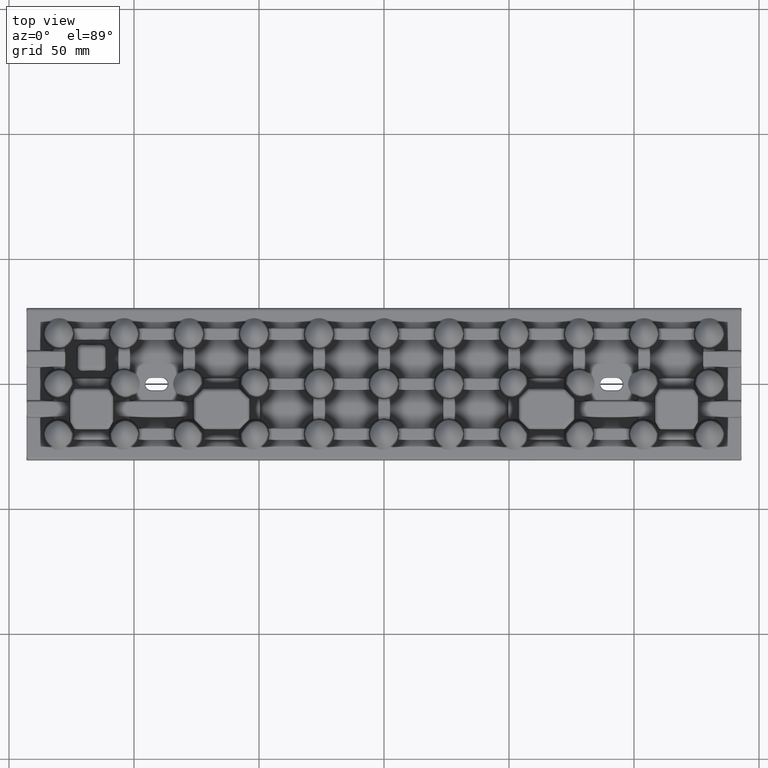
[diagram: clean part render]
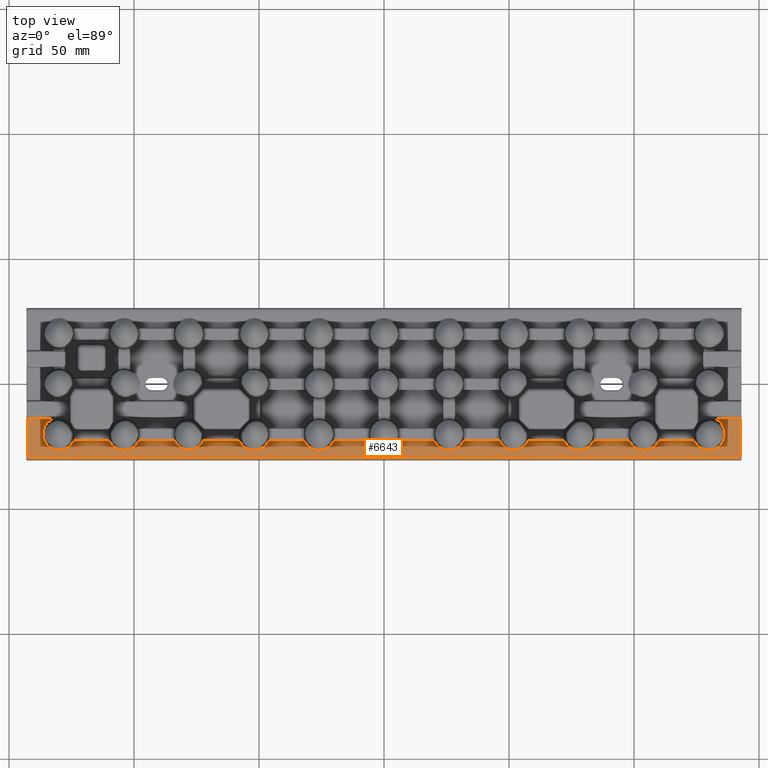
[diagram: same view with one face highlighted and labeled with its STEP entity id]
A machine part, top view. The second image highlights one B-rep face of the part: STEP entity #6643.
In plain terms, the highlighted planar face has unit normal (-0, 0, 1).
Its self-contained STEP definition (entity closure, byte-faithful):
#151 = CARTESIAN_POINT ( 'NONE',  ( 142.4984859507544300, -29.17765049216839300, 2.000000000000000000 ) ) ;
#738 = CARTESIAN_POINT ( 'NONE',  ( 0.0000000000000000000, -13.77131854326631800, 2.000000000000000000 ) ) ;
#808 = CARTESIAN_POINT ( 'NONE',  ( -127.1677831082584600, -25.85937667777277200, 1.999999999999998700 ) ) ;
#1240 = CARTESIAN_POINT ( 'NONE',  ( -132.9284881349958000, -25.81319105266127800, 2.000000000000580900 ) ) ;
#1615 = CARTESIAN_POINT ( 'NONE',  ( 136.0645933486443700, -17.88032124303272100, 1.999999999999994000 ) ) ;
#1689 = CARTESIAN_POINT ( 'NONE',  ( -136.4034223964154900, -20.67570142104287400, 1.999999999999924900 ) ) ;
#1784 = VERTEX_POINT ( 'NONE', #80443 ) ;
#2050 = B_SPLINE_CURVE_WITH_KNOTS ( 'NONE', 3,
 ( #93510, #18031, #28947, #104326, #39819, #115193, #50629, #126154, #61452, #137053, #72276, #7617, #83119, #18498, #93983, #29444, #104818, #40272, #115698, #51113, #126619, #61924, #137532, #72758, #8069, #83607, #18986, #94443, #29912, #105291 ),
 .UNSPECIFIED., .F., .F.,
 ( 4, 2, 2, 2, 2, 2, 2, 2, 2, 2, 2, 2, 2, 2, 4 ),
 ( 0.0000000000000000000, 0.0009156152931669612400, 0.001831230586333922500, 0.002746845879500883900, 0.003662461172667845000, 0.004578076465834806900, 0.005493691759001767900, 0.007324922345335689900, 0.009156152931669613700, 0.01007176822483659200, 0.01098738351800357400, 0.01190299881117055400, 0.01281861410433753600, 0.01373422939750451600, 0.01464984469067149800 ),
 .UNSPECIFIED. ) ;
#2087 = CARTESIAN_POINT ( 'NONE',  ( 135.9368117710015200, -22.43650695266701000, 2.000000000000037700 ) ) ;
#2168 = CARTESIAN_POINT ( 'NONE',  ( -134.4511378802417000, -15.25931890034266800, 1.999999999999991800 ) ) ;
#2431 = CARTESIAN_POINT ( 'NONE',  ( -22.78574191850781000, -25.66615805164716900, 2.000000000000021300 ) ) ;
#2572 = CARTESIAN_POINT ( 'NONE',  ( 130.9432951432893000, -26.41147579895971400, 2.000000000000077700 ) ) ;
#2839 = CARTESIAN_POINT ( 'NONE',  ( -83.68591838113543700, -22.74142219370179800, 2.000000000000000000 ) ) ;
#2891 = CARTESIAN_POINT ( 'NONE',  ( -29.97917873193784600, -25.15741094666958900, 2.000000000000002200 ) ) ;
#3017 = CARTESIAN_POINT ( 'NONE',  ( 31.22517783214215100, -23.81596749769660100, 2.000000000000000900 ) ) ;
#3030 = CARTESIAN_POINT ( 'NONE',  ( 125.2915654326091300, -24.49794283214327700, 2.000000000000016400 ) ) ;
#3046 = VECTOR ( 'NONE', #37584, 1000.000000000000000 ) ;
#3304 = CARTESIAN_POINT ( 'NONE',  ( -79.47440536052313600, -26.19264104530129700, 2.000000000000704800 ) ) ;
#3496 = CARTESIAN_POINT ( 'NONE',  ( 24.77591608115842400, -26.39024483070197000, 2.000000000000047500 ) ) ;
#3790 = CARTESIAN_POINT ( 'NONE',  ( -73.44410495880994500, -24.48426897416614900, 2.000000000000000400 ) ) ;
#3969 = CARTESIAN_POINT ( 'NONE',  ( 20.19330319997780200, -22.74142219370180100, 2.000000000000000000 ) ) ;
#5532 = EDGE_CURVE ( 'NONE', #45907, #138908, #137024, .T. ) ;
#5817 = CARTESIAN_POINT ( 'NONE',  ( 109.0463934162893100, -24.06677578848307400, 1.999999999999997800 ) ) ;
#5936 = CARTESIAN_POINT ( 'NONE',  ( -46.95360658371073700, -24.06677578848306400, 1.999999999999998200 ) ) ;
#6086 = CARTESIAN_POINT ( 'NONE',  ( 5.806695894209216400, -22.74142219370180100, 2.000000000000000000 ) ) ;
#6263 = CARTESIAN_POINT ( 'NONE',  ( 101.8948791401308000, -26.14868328437718500, 2.000000000000044400 ) ) ;
#6317 = CARTESIAN_POINT ( 'NONE',  ( 5.806695894209216400, -22.74142219370180100, 2.000000000000000000 ) ) ;
#6389 = CARTESIAN_POINT ( 'NONE',  ( -54.10512085986916000, -26.14868328437720300, 2.000000000000046200 ) ) ;
#6579 = B_SPLINE_CURVE_WITH_KNOTS ( 'NONE', 3,
 ( #61345, #94341, #40642, #116062, #51491, #126989, #62280, #137917, #73136, #8439, #83967, #19393, #94812, #30269, #105670, #41104, #116513, #51948, #127485, #62749, #138365, #73627, #8917, #84432, #19844, #95293, #30754, #106106, #41574, #116996 ),
 .UNSPECIFIED., .F., .F.,
 ( 4, 2, 2, 2, 2, 2, 2, 2, 2, 2, 2, 2, 2, 2, 4 ),
 ( 0.0000000000000000000, 0.0009156152931670032000, 0.001831230586334006400, 0.002746845879501009700, 0.003662461172668012800, 0.004578076465835015900, 0.005493691759002019400, 0.007324922345336025600, 0.009156152931670031800, 0.01007176822483703400, 0.01098738351800403900, 0.01190299881117104100, 0.01281861410433804400, 0.01373422939750504900, 0.01464984469067205100 ),
 .UNSPECIFIED. ) ;
#6643 = ADVANCED_FACE ( 'NONE', ( #37579 ), #47187, .T. ) ;
#6795 = CARTESIAN_POINT ( 'NONE',  ( 0.6072638204597877700, -26.47178359259649500, 2.000000000000000400 ) ) ;
#7279 = CARTESIAN_POINT ( 'NONE',  ( -5.541684193575162200, -23.29783372013630700, 1.999999999999997300 ) ) ;
#7511 = CARTESIAN_POINT ( 'NONE',  ( 48.85203890220482500, -25.57334693109025300, 2.000000000000000000 ) ) ;
#7617 = CARTESIAN_POINT ( 'NONE',  ( -101.6125027777899800, -26.04970351059458600, 2.000000000000000400 ) ) ;
#7990 = CARTESIAN_POINT ( 'NONE',  ( 54.89385118735477000, -25.73014058700009300, 2.000000000000052800 ) ) ;
#8069 = CARTESIAN_POINT ( 'NONE',  ( -108.6560866437757400, -24.53350805554909200, 2.000000000000000000 ) ) ;
#8439 = CARTESIAN_POINT ( 'NONE',  ( 81.21425808149213300, -25.66615805164720900, 2.000000000000023100 ) ) ;
#8603 = VERTEX_POINT ( 'NONE', #75447 ) ;
#8917 = CARTESIAN_POINT ( 'NONE',  ( 74.02082126806209300, -25.15741094666951500, 1.999999999999998700 ) ) ;
#9005 = CARTESIAN_POINT ( 'NONE',  ( 0.0000000000000000000, -22.74142219370180100, 2.000000000000000000 ) ) ;
#9066 = VECTOR ( 'NONE', #96254, 1000.000000000000000 ) ;
#10142 = LINE ( 'NONE', #137758, #74346 ) ;
#10251 = ORIENTED_EDGE ( 'NONE', *, *, #43761, .T. ) ;
#10400 = DIRECTION ( 'NONE',  ( -1.000000000000000000, 0.0000000000000000000, -0.0000000000000000000 ) ) ;
#11707 = CARTESIAN_POINT ( 'NONE',  ( -127.8893021688685700, -26.14484478611346700, 1.999999999999999600 ) ) ;
#12103 = CARTESIAN_POINT ( 'NONE',  ( 132.7414221937016500, -14.10473753803592900, 2.000000000000000000 ) ) ;
#12179 = CARTESIAN_POINT ( 'NONE',  ( -133.5956950706368200, -25.43116412947593800, 2.000000000000000400 ) ) ;
#12572 = CARTESIAN_POINT ( 'NONE',  ( 136.3714528742059400, -19.14471316600591800, 1.999999999999998200 ) ) ;
#12652 = CARTESIAN_POINT ( 'NONE',  ( -136.4687953592168700, -20.15979065126468900, 1.999999999999988000 ) ) ;
#13035 = CARTESIAN_POINT ( 'NONE',  ( 135.6189141730190800, -23.14793478291226900, 2.000000000000000900 ) ) ;
#13103 = CARTESIAN_POINT ( 'NONE',  ( -133.8644639586054800, -14.75777282845834600, 1.999999999999997100 ) ) ;
#13353 = CARTESIAN_POINT ( 'NONE',  ( -23.61250277778998500, -26.04970351059461500, 2.000000000000001300 ) ) ;
#13484 = CARTESIAN_POINT ( 'NONE',  ( 129.9075844915361700, -26.48989633160882900, 2.000000000000012900 ) ) ;
#13759 = CARTESIAN_POINT ( 'NONE',  ( -83.42780945839075500, -23.28035222551023200, 2.000000000000020000 ) ) ;
#13829 = CARTESIAN_POINT ( 'NONE',  ( -30.65608664377573000, -24.53350805554907400, 1.999999999999998200 ) ) ;
#13958 = CARTESIAN_POINT ( 'NONE',  ( 30.65280113382921500, -24.53726980429203100, 2.000000000000003100 ) ) ;
#13972 = CARTESIAN_POINT ( 'NONE',  ( 124.6754670495089400, -23.66103315853757400, 2.000000000000003600 ) ) ;
#14068 = EDGE_CURVE ( 'NONE', #75437, #89646, #37893, .T. ) ;
#14276 = CARTESIAN_POINT ( 'NONE',  ( -78.59053231696451300, -26.32451529257474500, 2.000000000000027100 ) ) ;
#14446 = CARTESIAN_POINT ( 'NONE',  ( 23.60270962495429000, -26.04602759859922000, 2.000000000000492100 ) ) ;
#14724 = CARTESIAN_POINT ( 'NONE',  ( -72.88473329963906600, -23.78758118116923400, 2.000000000000177200 ) ) ;
#15299 = VECTOR ( 'NONE', #82431, 1000.000000000000000 ) ;
#16713 = CARTESIAN_POINT ( 'NONE',  ( 108.4394758896441300, -24.75519463531261300, 1.999999999999997300 ) ) ;
#16823 = CARTESIAN_POINT ( 'NONE',  ( -47.56052411035586400, -24.75519463531259100, 1.999999999999998700 ) ) ;
#17177 = CARTESIAN_POINT ( 'NONE',  ( 101.0444661012235800, -25.80218862291354000, 2.000000000000492900 ) ) ;
#17229 = CARTESIAN_POINT ( 'NONE',  ( 5.225177832142147600, -23.81596749769657600, 2.000000000000000000 ) ) ;
#17297 = CARTESIAN_POINT ( 'NONE',  ( -54.95553389877639500, -25.80218862291353700, 2.000000000000492100 ) ) ;
#17616 = CARTESIAN_POINT ( 'NONE',  ( -142.4984859507544300, -13.77131854326631800, 2.000000000000000000 ) ) ;
#17719 = CARTESIAN_POINT ( 'NONE',  ( -1.224083918841574600, -26.39024483070197400, 2.000000000000044400 ) ) ;
#18031 = CARTESIAN_POINT ( 'NONE',  ( -98.31652695120499200, -23.02322631670617500, 1.999999999999999600 ) ) ;
#18085 = EDGE_CURVE ( 'NONE', #115198, #123101, #98378, .T. ) ;
#18185 = CARTESIAN_POINT ( 'NONE',  ( -5.806696800022201000, -22.74142219370179800, 2.000000000000000000 ) ) ;
#18405 = CARTESIAN_POINT ( 'NONE',  ( 49.66674057096045700, -25.94368252401840300, 2.000000000000001800 ) ) ;
#18498 = CARTESIAN_POINT ( 'NONE',  ( -102.7897079197724700, -26.39300811469664200, 1.999999999999997800 ) ) ;
#18889 = CARTESIAN_POINT ( 'NONE',  ( 55.89689297013789100, -25.08300639374745300, 2.000000000000000000 ) ) ;
#18986 = CARTESIAN_POINT ( 'NONE',  ( -109.2224709639855000, -23.82003017580197800, 1.999999999999989600 ) ) ;
#19273 = VERTEX_POINT ( 'NONE', #34967 ) ;
#19393 = CARTESIAN_POINT ( 'NONE',  ( 80.38749722220997300, -26.04970351059464000, 1.999999999999999600 ) ) ;
#19844 = CARTESIAN_POINT ( 'NONE',  ( 73.34391335622426300, -24.53350805554905300, 2.000000000000005300 ) ) ;
#20604 = VERTEX_POINT ( 'NONE', #93060 ) ;
#21101 = CARTESIAN_POINT ( 'NONE',  ( 0.0000000000000000000, -13.77131854326631800, 2.000000000000000000 ) ) ;
#22136 = LINE ( 'NONE', #28743, #15299 ) ;
#22641 = CARTESIAN_POINT ( 'NONE',  ( -128.6420385431768000, -26.34150779007648800, 2.000000000000001300 ) ) ;
#23036 = CARTESIAN_POINT ( 'NONE',  ( 133.6569050662870400, -14.58866901737052400, 2.000000000000001800 ) ) ;
#23112 = CARTESIAN_POINT ( 'NONE',  ( -134.2114228412292200, -24.96202852704506000, 2.000000000000018700 ) ) ;
#23497 = CARTESIAN_POINT ( 'NONE',  ( 136.4624981033706800, -19.78855814361871500, 1.999999999999952700 ) ) ;
#23570 = CARTESIAN_POINT ( 'NONE',  ( -136.4607761439300800, -19.77090691509322800, 2.000000000000050200 ) ) ;
#23603 = AXIS2_PLACEMENT_3D ( 'NONE', #100887, #58015, #133603 ) ;
#23826 = CARTESIAN_POINT ( 'NONE',  ( -20.31652695120500600, -23.02322631670618900, 2.000000000000000000 ) ) ;
#23876 = CARTESIAN_POINT ( 'NONE',  ( 0.0000000000000000000, -22.74142219370179800, 2.000000000000000000 ) ) ;
#23948 = CARTESIAN_POINT ( 'NONE',  ( 134.9360761450868400, -24.23255381369675400, 1.999999999999994400 ) ) ;
#24028 = CARTESIAN_POINT ( 'NONE',  ( -133.2090960313395300, -14.33342506234662900, 2.000000000000002700 ) ) ;
#24128 = EDGE_CURVE ( 'NONE', #20604, #123647, #56181, .T. ) ;
#24276 = CARTESIAN_POINT ( 'NONE',  ( -24.78970791977252500, -26.39300811469662700, 1.999999999999999600 ) ) ;
#24420 = CARTESIAN_POINT ( 'NONE',  ( 128.6287481142321700, -26.33886046399919300, 1.999999999999991800 ) ) ;
#24692 = CARTESIAN_POINT ( 'NONE',  ( -82.94024451899652200, -24.03007750043275700, 2.000000000000000900 ) ) ;
#24748 = CARTESIAN_POINT ( 'NONE',  ( -31.22247096398546500, -23.82003017580198200, 2.000000000000002700 ) ) ;
#24818 = CARTESIAN_POINT ( 'NONE',  ( 0.0000000000000000000, -22.74142219370179800, 2.000000000000000000 ) ) ;
#24864 = CARTESIAN_POINT ( 'NONE',  ( 29.97997364841552300, -25.15661630234944100, 1.999999999999999100 ) ) ;
#24878 = CARTESIAN_POINT ( 'NONE',  ( 124.2977623594017000, -22.98031564957841200, 2.000000000000000900 ) ) ;
#25151 = CARTESIAN_POINT ( 'NONE',  ( -77.69550166096097100, -26.34256206832378700, 2.000000000000001300 ) ) ;
#25266 = DIRECTION ( 'NONE',  ( -0.0000000000000000000, 1.000000000000000000, -0.0000000000000000000 ) ) ;
#25323 = CARTESIAN_POINT ( 'NONE',  ( 22.77675482516403700, -25.66096127824901900, 2.000000000000000400 ) ) ;
#25608 = CARTESIAN_POINT ( 'NONE',  ( -72.43377712669759200, -23.01370780811186700, 2.000000000000002200 ) ) ;
#25620 = CARTESIAN_POINT ( 'NONE',  ( 57.68591749716829800, -22.74142219370180100, 2.000000000000000000 ) ) ;
#27266 = VERTEX_POINT ( 'NONE', #95319 ) ;
#27525 = VECTOR ( 'NONE', #116684, 1000.000000000000000 ) ;
#27642 = CARTESIAN_POINT ( 'NONE',  ( 107.7316097660336100, -25.34129135774813000, 2.000000000000023500 ) ) ;
#27766 = CARTESIAN_POINT ( 'NONE',  ( -48.26839023396642100, -25.34129135774810500, 2.000000000000021800 ) ) ;
#28104 = CARTESIAN_POINT ( 'NONE',  ( 100.2648886500111600, -25.33864648467306300, 2.000000000000000000 ) ) ;
#28154 = CARTESIAN_POINT ( 'NONE',  ( 4.652801133829243000, -24.53726980429200200, 2.000000000000001800 ) ) ;
#28221 = CARTESIAN_POINT ( 'NONE',  ( -55.73511134998881300, -25.33864648467306000, 1.999999999999999600 ) ) ;
#28620 = CARTESIAN_POINT ( 'NONE',  ( -2.397290375045698000, -26.04602759859922400, 2.000000000000492100 ) ) ;
#28743 = CARTESIAN_POINT ( 'NONE',  ( 0.0000000000000000000, -29.17765049216839300, 2.000000000000000000 ) ) ;
#28850 = CARTESIAN_POINT ( 'NONE',  ( 46.43367432634570900, -23.01347693019735300, 2.000000000000001300 ) ) ;
#28947 = CARTESIAN_POINT ( 'NONE',  ( -98.45676499946749500, -23.29491823710616000, 2.000000000000000000 ) ) ;
#29328 = LINE ( 'NONE', #31900, #57962 ) ;
#29346 = CARTESIAN_POINT ( 'NONE',  ( 50.52559463947675100, -26.19264104530126100, 2.000000000000703000 ) ) ;
#29444 = CARTESIAN_POINT ( 'NONE',  ( -104.6217774259914300, -26.47048911014606900, 2.000000000000000000 ) ) ;
#29831 = CARTESIAN_POINT ( 'NONE',  ( 56.55589504119009100, -24.48426897416617700, 2.000000000000000000 ) ) ;
#29912 = CARTESIAN_POINT ( 'NONE',  ( -109.6834144177099700, -23.02336352389917100, 2.000000000000000000 ) ) ;
#29960 = EDGE_CURVE ( 'NONE', #106821, #115198, #75830, .T. ) ;
#30269 = CARTESIAN_POINT ( 'NONE',  ( 79.21029208022733300, -26.39300811469664900, 2.000000000000001300 ) ) ;
#30695 = ORIENTED_EDGE ( 'NONE', *, *, #125096, .T. ) ;
#30754 = CARTESIAN_POINT ( 'NONE',  ( 72.77752903601454200, -23.82003017580197800, 2.000000000000002200 ) ) ;
#31175 = LINE ( 'NONE', #37825, #88465 ) ;
#31378 = EDGE_CURVE ( 'NONE', #58098, #1784, #116177, .T. ) ;
#31459 = CARTESIAN_POINT ( 'NONE',  ( 0.0000000000000000000, -22.74142219370179800, 2.000000000000000000 ) ) ;
#31900 = CARTESIAN_POINT ( 'NONE',  ( 0.0000000000000000000, -22.74142219370180100, 2.000000000000000000 ) ) ;
#32205 = CARTESIAN_POINT ( 'NONE',  ( 0.0000000000000000000, -22.74142219370180100, 2.000000000000000000 ) ) ;
#32455 = EDGE_CURVE ( 'NONE', #76427, #109794, #58636, .T. ) ;
#33199 = EDGE_CURVE ( 'NONE', #75437, #123647, #64641, .T. ) ;
#33402 = VECTOR ( 'NONE', #99248, 1000.000000000000000 ) ;
#33509 = CARTESIAN_POINT ( 'NONE',  ( -129.4074505486324000, -26.45057061535970200, 2.000000000000000900 ) ) ;
#33891 = CARTESIAN_POINT ( 'NONE',  ( 134.4516583919933100, -15.25979955793436300, 2.000000000000421400 ) ) ;
#33979 = CARTESIAN_POINT ( 'NONE',  ( -134.9419096960797600, -24.22524177694613500, 2.000000000000000900 ) ) ;
#34194 = ORIENTED_EDGE ( 'NONE', *, *, #127836, .T. ) ;
#34356 = CARTESIAN_POINT ( 'NONE',  ( 136.4672048514999600, -20.17843755265983700, 1.999999999999964500 ) ) ;
#34431 = CARTESIAN_POINT ( 'NONE',  ( -136.3684743477429300, -19.12850336203381800, 2.000000000000009300 ) ) ;
#34695 = CARTESIAN_POINT ( 'NONE',  ( -20.45676499946746700, -23.29491823710616000, 1.999999999999998200 ) ) ;
#34837 = CARTESIAN_POINT ( 'NONE',  ( 134.2040338513504300, -24.96841754248552500, 2.000000000000001300 ) ) ;
#34912 = CARTESIAN_POINT ( 'NONE',  ( -132.7414221937016500, -14.10473258521159100, 2.000000000000000000 ) ) ;
#34967 = CARTESIAN_POINT ( 'NONE',  ( -132.7414221937016500, -13.77131854326631800, 2.000000000000000000 ) ) ;
#35159 = CARTESIAN_POINT ( 'NONE',  ( -26.62177742599142900, -26.47048911014606900, 1.999999999999999600 ) ) ;
#35285 = CARTESIAN_POINT ( 'NONE',  ( 127.8759890555552200, -26.14042897951428700, 2.000000000000221200 ) ) ;
#35560 = CARTESIAN_POINT ( 'NONE',  ( -82.34792046477386400, -24.69451371952746800, 1.999999999999999600 ) ) ;
#35612 = CARTESIAN_POINT ( 'NONE',  ( -31.68341441770995800, -23.02336352389917100, 2.000000000000000000 ) ) ;
#35744 = CARTESIAN_POINT ( 'NONE',  ( 29.21425808149216900, -25.66615805164721900, 2.000000000000022600 ) ) ;
#36047 = CARTESIAN_POINT ( 'NONE',  ( -76.81111546368501300, -26.24789493660954800, 2.000000000000001300 ) ) ;
#36107 = ORIENTED_EDGE ( 'NONE', *, *, #87953, .T. ) ;
#36225 = CARTESIAN_POINT ( 'NONE',  ( 22.02082126806217100, -25.15741094666958200, 2.000000000000001300 ) ) ;
#36401 = ORIENTED_EDGE ( 'NONE', *, *, #96386, .T. ) ;
#37333 = VERTEX_POINT ( 'NONE', #151 ) ;
#37579 = FACE_OUTER_BOUND ( 'NONE', #130443, .T. ) ;
#37584 = DIRECTION ( 'NONE',  ( -0.0000000000000000000, 1.000000000000000000, -0.0000000000000000000 ) ) ;
#37825 = CARTESIAN_POINT ( 'NONE',  ( 132.7414221937016500, 0.0000000000000000000, 2.000000000000000000 ) ) ;
#37893 = LINE ( 'NONE', #31459, #95241 ) ;
#38475 = CARTESIAN_POINT ( 'NONE',  ( 106.9451655532683700, -25.80728826625282900, 2.000000000000000000 ) ) ;
#38591 = CARTESIAN_POINT ( 'NONE',  ( -49.05483444673166100, -25.80728826625284000, 2.000000000000000900 ) ) ;
#38946 = CARTESIAN_POINT ( 'NONE',  ( 99.55769046698991100, -24.75263028433559500, 2.000000000000000000 ) ) ;
#38999 = CARTESIAN_POINT ( 'NONE',  ( 3.979973648415558800, -25.15661630234941600, 1.999999999999999600 ) ) ;
#39074 = CARTESIAN_POINT ( 'NONE',  ( -56.44230953301003200, -24.75263028433563800, 2.000000000000000000 ) ) ;
#39489 = CARTESIAN_POINT ( 'NONE',  ( -3.223245174835940300, -25.66096127824901200, 2.000000000000001300 ) ) ;
#39679 = VECTOR ( 'NONE', #25266, 1000.000000000000000 ) ;
#39718 = CARTESIAN_POINT ( 'NONE',  ( 46.57219054160929500, -23.28035222551022400, 2.000000000000019100 ) ) ;
#39819 = CARTESIAN_POINT ( 'NONE',  ( -98.95360658371070900, -24.06677578848300700, 2.000000000000002700 ) ) ;
#40182 = CARTESIAN_POINT ( 'NONE',  ( 51.40946768303538800, -26.32451529257474100, 2.000000000000027500 ) ) ;
#40272 = CARTESIAN_POINT ( 'NONE',  ( -106.1051208598691200, -26.14868328437722100, 2.000000000000047500 ) ) ;
#40499 = B_SPLINE_CURVE_WITH_KNOTS ( 'NONE', 3,
 ( #55855, #23826, #34695, #110059, #45501, #120962, #56325, #131901, #67133, #2431, #78002, #13353, #88896, #24276, #99647, #35159, #110540, #45988, #121426, #56810, #132392, #67601, #2891, #78470, #13829, #89351, #24748, #100117, #35612, #110990 ),
 .UNSPECIFIED., .F., .F.,
 ( 4, 2, 2, 2, 2, 2, 2, 2, 2, 2, 2, 2, 2, 2, 4 ),
 ( 3.469446951953614200E-018, 0.0009156152931669754400, 0.001831230586333947400, 0.002746845879500919500, 0.003662461172667891400, 0.004578076465834863200, 0.005493691759001835500, 0.007324922345335786200, 0.009156152931669736900, 0.01007176822483671700, 0.01098738351800369500, 0.01190299881117067700, 0.01281861410433765700, 0.01373422939750463700, 0.01464984469067161800 ),
 .UNSPECIFIED. ) ;
#40642 = CARTESIAN_POINT ( 'NONE',  ( 83.54323500053254700, -23.29491823710620600, 1.999999999999998200 ) ) ;
#40648 = CARTESIAN_POINT ( 'NONE',  ( 57.11526670036095500, -23.78758118116922700, 2.000000000000176300 ) ) ;
#40727 = CARTESIAN_POINT ( 'NONE',  ( 142.4984859507544300, -13.77131854326631800, 2.000000000000000000 ) ) ;
#40961 = VERTEX_POINT ( 'NONE', #109076 ) ;
#41104 = CARTESIAN_POINT ( 'NONE',  ( 77.37822257400844700, -26.47048911014606900, 1.999999999999999100 ) ) ;
#41106 = ORIENTED_EDGE ( 'NONE', *, *, #51446, .T. ) ;
#41574 = CARTESIAN_POINT ( 'NONE',  ( 72.31658558229007400, -23.02336352389914600, 2.000000000000000400 ) ) ;
#43761 = EDGE_CURVE ( 'NONE', #130184, #40961, #29328, .T. ) ;
#43881 = CARTESIAN_POINT ( 'NONE',  ( -125.2903691348312700, -24.49689315777552400, 1.999999999999997300 ) ) ;
#44342 = CARTESIAN_POINT ( 'NONE',  ( -130.1863579666847100, -26.47344023647621800, 2.000000000000125200 ) ) ;
#44733 = CARTESIAN_POINT ( 'NONE',  ( 134.9688219662598400, -15.83628162600642100, 2.000000000000046200 ) ) ;
#44811 = CARTESIAN_POINT ( 'NONE',  ( -135.7572785292154800, -22.90030220641899200, 2.000000000000000400 ) ) ;
#45184 = CARTESIAN_POINT ( 'NONE',  ( 136.4004426738390200, -20.69303686582421900, 1.999999999999945400 ) ) ;
#45247 = CARTESIAN_POINT ( 'NONE',  ( -136.0598904677018500, -17.86690788165032400, 2.000000000000004400 ) ) ;
#45501 = CARTESIAN_POINT ( 'NONE',  ( -20.95360658371074400, -24.06677578848303500, 2.000000000000002200 ) ) ;
#45631 = CARTESIAN_POINT ( 'NONE',  ( 133.5888154210448400, -25.43573940505680400, 1.999999999999997300 ) ) ;
#45907 = VERTEX_POINT ( 'NONE', #88023 ) ;
#45988 = CARTESIAN_POINT ( 'NONE',  ( -28.10512085986910000, -26.14868328437721300, 2.000000000000044400 ) ) ;
#46113 = CARTESIAN_POINT ( 'NONE',  ( 31.80669589420920900, -22.74142219370180100, 2.000000000000000000 ) ) ;
#46127 = CARTESIAN_POINT ( 'NONE',  ( 127.1614084082585900, -25.85631073705230800, 1.999999999999998200 ) ) ;
#46420 = CARTESIAN_POINT ( 'NONE',  ( -81.65221506969388100, -25.26203024768307900, 2.000000000000001300 ) ) ;
#46597 = CARTESIAN_POINT ( 'NONE',  ( 28.38749722220999100, -26.04970351059462500, 1.999999999999998700 ) ) ;
#46877 = CARTESIAN_POINT ( 'NONE',  ( -75.64968121670777600, -25.95945051204474700, 2.000000000000009300 ) ) ;
#47040 = CARTESIAN_POINT ( 'NONE',  ( 21.34391335622428400, -24.53350805554907400, 2.000000000000000400 ) ) ;
#47187 = PLANE ( 'NONE',  #23603 ) ;
#47329 = CARTESIAN_POINT ( 'NONE',  ( 20.19330319997780200, -22.74142219370180100, 2.000000000000000000 ) ) ;
#48009 = VECTOR ( 'NONE', #134910, 1000.000000000000000 ) ;
#48808 = ORIENTED_EDGE ( 'NONE', *, *, #24128, .T. ) ;
#48853 = CARTESIAN_POINT ( 'NONE',  ( 109.6834730487950200, -23.02322631670622900, 2.000000000000000000 ) ) ;
#48964 = CARTESIAN_POINT ( 'NONE',  ( -46.31652695120499900, -23.02322631670618900, 2.000000000000000900 ) ) ;
#49319 = CARTESIAN_POINT ( 'NONE',  ( 106.0969733604313800, -26.15140833198172000, 2.000000000000000000 ) ) ;
#49444 = CARTESIAN_POINT ( 'NONE',  ( -49.90302663956856600, -26.15140833198170600, 1.999999999999999600 ) ) ;
#49799 = CARTESIAN_POINT ( 'NONE',  ( 98.95429715980800700, -24.06744520968494800, 2.000000000000013800 ) ) ;
#49848 = CARTESIAN_POINT ( 'NONE',  ( 3.214258081492198800, -25.66615805164717300, 2.000000000000021300 ) ) ;
#49928 = CARTESIAN_POINT ( 'NONE',  ( -57.04570284019202100, -24.06744520968491900, 1.999999999999994400 ) ) ;
#50310 = CARTESIAN_POINT ( 'NONE',  ( -3.979178731937827800, -25.15741094666957500, 2.000000000000000400 ) ) ;
#50527 = CARTESIAN_POINT ( 'NONE',  ( 47.05975548100347100, -24.03007750043271400, 1.999999999999998700 ) ) ;
#50629 = CARTESIAN_POINT ( 'NONE',  ( -99.56052411035580000, -24.75519463531259100, 2.000000000000000400 ) ) ;
#51013 = CARTESIAN_POINT ( 'NONE',  ( 52.30449833903897900, -26.34256206832378000, 1.999999999999999600 ) ) ;
#51113 = CARTESIAN_POINT ( 'NONE',  ( -106.9555338987763700, -25.80218862291355500, 2.000000000000491200 ) ) ;
#51446 = EDGE_CURVE ( 'NONE', #90736, #76427, #40499, .T. ) ;
#51491 = CARTESIAN_POINT ( 'NONE',  ( 83.04639341628922000, -24.06677578848309900, 2.000000000000009300 ) ) ;
#51496 = CARTESIAN_POINT ( 'NONE',  ( 57.56622287330245800, -23.01370780811185000, 2.000000000000001300 ) ) ;
#51948 = CARTESIAN_POINT ( 'NONE',  ( 75.89487914013076900, -26.14868328437717100, 2.000000000000046600 ) ) ;
#52117 = CARTESIAN_POINT ( 'NONE',  ( 0.0000000000000000000, -22.74142219370179800, 2.000000000000000000 ) ) ;
#53014 = ORIENTED_EDGE ( 'NONE', *, *, #121007, .T. ) ;
#53388 = CARTESIAN_POINT ( 'NONE',  ( 0.0000000000000000000, -22.74142219370179800, 2.000000000000000000 ) ) ;
#54661 = VERTEX_POINT ( 'NONE', #57407 ) ;
#54709 = CARTESIAN_POINT ( 'NONE',  ( -126.2726927930745400, -25.34167954715730500, 2.000000000000016000 ) ) ;
#55117 = CARTESIAN_POINT ( 'NONE',  ( -132.7414221937016500, -14.10473258521159100, 2.000000000000000000 ) ) ;
#55158 = CARTESIAN_POINT ( 'NONE',  ( -131.4663745589005000, -26.33477186066688700, 1.999999999999996200 ) ) ;
#55533 = CARTESIAN_POINT ( 'NONE',  ( 135.4108740228137400, -16.47872287474798700, 1.999999999999979600 ) ) ;
#55612 = CARTESIAN_POINT ( 'NONE',  ( -136.1823910671495000, -21.68750928238486600, 2.000000000000025800 ) ) ;
#55855 = CARTESIAN_POINT ( 'NONE',  ( -20.19330410579080100, -22.74142219370179800, 2.000000000000000000 ) ) ;
#55886 = DIRECTION ( 'NONE',  ( 0.0000000000000000000, -1.000000000000000000, 0.0000000000000000000 ) ) ;
#55929 = VERTEX_POINT ( 'NONE', #25620 ) ;
#55996 = CARTESIAN_POINT ( 'NONE',  ( 136.2434715544095800, -21.45293100467358700, 2.000000000000036000 ) ) ;
#56077 = CARTESIAN_POINT ( 'NONE',  ( -135.4238499266821000, -16.46861939280287100, 1.999999999999992200 ) ) ;
#56181 = LINE ( 'NONE', #52117, #27525 ) ;
#56325 = CARTESIAN_POINT ( 'NONE',  ( -21.56052411035583600, -24.75519463531257400, 2.000000000000000400 ) ) ;
#56471 = CARTESIAN_POINT ( 'NONE',  ( 132.4447610383858500, -26.04204316132873800, 2.000000000000000400 ) ) ;
#56810 = CARTESIAN_POINT ( 'NONE',  ( -28.95553389877638000, -25.80218862291354400, 2.000000000000490700 ) ) ;
#56942 = CARTESIAN_POINT ( 'NONE',  ( 126.4852389556759000, -25.48385942365119300, 2.000000000000201600 ) ) ;
#57207 = CARTESIAN_POINT ( 'NONE',  ( -80.88403087684410800, -25.70944690475063500, 2.000000000000003600 ) ) ;
#57376 = CARTESIAN_POINT ( 'NONE',  ( 27.21029208022744700, -26.39300811469662700, 1.999999999999999600 ) ) ;
#57399 = ORIENTED_EDGE ( 'NONE', *, *, #31378, .T. ) ;
#57407 = CARTESIAN_POINT ( 'NONE',  ( 83.80669589420918400, -22.74142219370180100, 2.000000000000000000 ) ) ;
#57581 = EDGE_CURVE ( 'NONE', #109794, #20604, #72365, .T. ) ;
#57665 = CARTESIAN_POINT ( 'NONE',  ( -74.34767569003899700, -25.26199956068239100, 2.000000000000051100 ) ) ;
#57852 = CARTESIAN_POINT ( 'NONE',  ( 20.77752903601456700, -23.82003017580198900, 2.000000000000000000 ) ) ;
#57962 = VECTOR ( 'NONE', #96424, 1000.000000000000000 ) ;
#58015 = DIRECTION ( 'NONE',  ( -0.0000000000000000000, 0.0000000000000000000, 1.000000000000000000 ) ) ;
#58059 = EDGE_CURVE ( 'NONE', #37333, #133635, #75104, .T. ) ;
#58098 = VERTEX_POINT ( 'NONE', #17616 ) ;
#58372 = CARTESIAN_POINT ( 'NONE',  ( 98.19330319997779100, -22.74142219370180100, 2.000000000000000000 ) ) ;
#58636 = LINE ( 'NONE', #23876, #33402 ) ;
#59783 = VECTOR ( 'NONE', #107374, 1000.000000000000000 ) ;
#60133 = CARTESIAN_POINT ( 'NONE',  ( 104.6072638204597100, -26.47178359259649100, 2.000000000000001300 ) ) ;
#60243 = CARTESIAN_POINT ( 'NONE',  ( -51.39273617954027900, -26.47178359259647700, 2.000000000000000000 ) ) ;
#60539 = LINE ( 'NONE', #123408, #3046 ) ;
#60596 = CARTESIAN_POINT ( 'NONE',  ( 98.45831580642477800, -23.29783372013627500, 1.999999999999992700 ) ) ;
#60642 = CARTESIAN_POINT ( 'NONE',  ( 2.387497222210033700, -26.04970351059460000, 2.000000000000000000 ) ) ;
#60713 = CARTESIAN_POINT ( 'NONE',  ( -57.54168419357520000, -23.29783372013634200, 2.000000000000002700 ) ) ;
#60785 = EDGE_CURVE ( 'NONE', #27266, #45907, #69629, .T. ) ;
#61109 = CARTESIAN_POINT ( 'NONE',  ( -4.656086643775729800, -24.53350805554908500, 1.999999999999997800 ) ) ;
#61345 = CARTESIAN_POINT ( 'NONE',  ( 83.80669589420918400, -22.74142219370180100, 2.000000000000000000 ) ) ;
#61352 = CARTESIAN_POINT ( 'NONE',  ( 47.65207953522610000, -24.69451371952743600, 2.000000000000000400 ) ) ;
#61452 = CARTESIAN_POINT ( 'NONE',  ( -100.2683902339663400, -25.34129135774806600, 2.000000000000021300 ) ) ;
#61844 = CARTESIAN_POINT ( 'NONE',  ( 53.18888453631493000, -26.24789493660956600, 2.000000000000000400 ) ) ;
#61924 = CARTESIAN_POINT ( 'NONE',  ( -107.7351113499887300, -25.33864648467309500, 1.999999999999997100 ) ) ;
#62280 = CARTESIAN_POINT ( 'NONE',  ( 82.43947588964412900, -24.75519463531263000, 2.000000000000002200 ) ) ;
#62749 = CARTESIAN_POINT ( 'NONE',  ( 75.04446610122357700, -25.80218862291351200, 2.000000000000491600 ) ) ;
#62814 = ORIENTED_EDGE ( 'NONE', *, *, #84625, .T. ) ;
#63865 = CARTESIAN_POINT ( 'NONE',  ( 132.7414221937016500, -14.10473753803592900, 2.000000000000000000 ) ) ;
#64364 = ORIENTED_EDGE ( 'NONE', *, *, #33199, .F. ) ;
#64641 = B_SPLINE_CURVE_WITH_KNOTS ( 'NONE', 3,
 ( #2839, #132328, #13759, #89301, #24692, #100056, #35560, #110938, #46420, #121847, #57207, #132814, #68006, #3304, #78857, #14276, #89760, #25151, #100550, #36047, #111410, #46877, #122338, #57665, #133271, #68486, #3790, #79303, #14724, #90230, #25608, #101016 ),
 .UNSPECIFIED., .F., .F.,
 ( 4, 2, 2, 2, 2, 2, 2, 2, 2, 2, 2, 2, 2, 2, 2, 4 ),
 ( 0.01145068442634666000, 0.01233612803145467000, 0.01322157163656268100, 0.01410701524167069100, 0.01499245884677870300, 0.01587790245188671500, 0.01676334605699472300, 0.01764878966210273200, 0.01853423326721074400, 0.01941967687231875600, 0.02030512047742676800, 0.02207600768764282600, 0.02296145129275085900, 0.02384689489785889200, 0.02473233850296692500, 0.02561778210807495700 ),
 .UNSPECIFIED. ) ;
#65239 = CARTESIAN_POINT ( 'NONE',  ( -83.68591838113543700, -22.74142219370179800, 2.000000000000000000 ) ) ;
#65526 = CARTESIAN_POINT ( 'NONE',  ( -126.9370115354205500, -25.74524534677249200, 1.999999999999997100 ) ) ;
#65883 = CARTESIAN_POINT ( 'NONE',  ( 133.2166995349549000, -14.31885835374718100, 2.000000000000000400 ) ) ;
#65965 = CARTESIAN_POINT ( 'NONE',  ( -132.4560516123828800, -26.02111931121613600, 2.000000000000580900 ) ) ;
#66341 = CARTESIAN_POINT ( 'NONE',  ( 135.7697568106390500, -17.16447482806652400, 1.999999999999993600 ) ) ;
#66394 = EDGE_CURVE ( 'NONE', #130184, #55929, #86764, .T. ) ;
#66420 = CARTESIAN_POINT ( 'NONE',  ( -136.3571853936549300, -20.93195760384811500, 1.999999999999953100 ) ) ;
#66814 = CARTESIAN_POINT ( 'NONE',  ( 136.0249918004703600, -22.19400237742577900, 1.999999999999987600 ) ) ;
#66884 = CARTESIAN_POINT ( 'NONE',  ( -134.8038077262025900, -15.63519214654070300, 1.999999999999992200 ) ) ;
#67133 = CARTESIAN_POINT ( 'NONE',  ( -22.26839023396637200, -25.34129135774807700, 2.000000000000021800 ) ) ;
#67272 = CARTESIAN_POINT ( 'NONE',  ( 131.4521770747454400, -26.32197354091502800, 2.000000000000078200 ) ) ;
#67601 = CARTESIAN_POINT ( 'NONE',  ( -29.73511134998877700, -25.33864648467310600, 1.999999999999997800 ) ) ;
#67681 = EDGE_CURVE ( 'NONE', #8603, #79568, #103956, .T. ) ;
#67722 = CARTESIAN_POINT ( 'NONE',  ( 31.54323500053256200, -23.29491823710617000, 2.000000000000000400 ) ) ;
#67736 = CARTESIAN_POINT ( 'NONE',  ( 125.6527848120365400, -24.86311286101873100, 2.000000000000461900 ) ) ;
#68006 = CARTESIAN_POINT ( 'NONE',  ( -80.04890539410158100, -26.04040062315962300, 2.000000000000703400 ) ) ;
#68193 = CARTESIAN_POINT ( 'NONE',  ( 25.37822257400854700, -26.47048911014605800, 1.999999999999999600 ) ) ;
#68486 = CARTESIAN_POINT ( 'NONE',  ( -73.65245239302177500, -24.69464221161137700, 2.000000000000000900 ) ) ;
#68659 = CARTESIAN_POINT ( 'NONE',  ( 20.31658558229007400, -23.02336352389916700, 2.000000000000000000 ) ) ;
#68776 = VERTEX_POINT ( 'NONE', #77333 ) ;
#69629 = LINE ( 'NONE', #24818, #127158 ) ;
#70107 = CARTESIAN_POINT ( 'NONE',  ( 0.0000000000000000000, -22.74142219370180100, 2.000000000000000000 ) ) ;
#70467 = CARTESIAN_POINT ( 'NONE',  ( 109.2251778321421200, -23.81596749769656200, 2.000000000000009300 ) ) ;
#70575 = CARTESIAN_POINT ( 'NONE',  ( -46.77482216785787000, -23.81596749769658000, 2.000000000000005800 ) ) ;
#70930 = CARTESIAN_POINT ( 'NONE',  ( 102.7759160811583300, -26.39024483070193800, 2.000000000000044000 ) ) ;
#70975 = CARTESIAN_POINT ( 'NONE',  ( 5.683473048795025100, -23.02322631670619700, 2.000000000000000400 ) ) ;
#71051 = CARTESIAN_POINT ( 'NONE',  ( -53.22408391884164300, -26.39024483070196000, 2.000000000000046600 ) ) ;
#71407 = CARTESIAN_POINT ( 'NONE',  ( 98.19330319997779100, -22.74142219370180100, 2.000000000000000000 ) ) ;
#71465 = CARTESIAN_POINT ( 'NONE',  ( 1.210292080227500100, -26.39300811469662700, 1.999999999999999600 ) ) ;
#71546 = CARTESIAN_POINT ( 'NONE',  ( -57.80669680002223700, -22.74142219370179800, 2.000000000000000000 ) ) ;
#71970 = CARTESIAN_POINT ( 'NONE',  ( -5.222470963985439400, -23.82003017580197800, 1.999999999999997800 ) ) ;
#72193 = CARTESIAN_POINT ( 'NONE',  ( 48.34778493030609800, -25.26203024768304300, 2.000000000000000400 ) ) ;
#72276 = CARTESIAN_POINT ( 'NONE',  ( -101.0548344467315900, -25.80728826625279700, 2.000000000000000400 ) ) ;
#72365 = B_SPLINE_CURVE_WITH_KNOTS ( 'NONE', 3,
 ( #124460, #48964, #135413, #70575, #5936, #81438, #16823, #92343, #27766, #103130, #38591, #114010, #49444, #124911, #60243, #135880, #71051, #6389, #81927, #17297, #92808, #28221, #103610, #39074, #114464, #49928, #125399, #60713, #136345, #71546 ),
 .UNSPECIFIED., .F., .F.,
 ( 4, 2, 2, 2, 2, 2, 2, 2, 2, 2, 2, 2, 2, 2, 4 ),
 ( 0.0000000000000000000, 0.0009156152931669975600, 0.001831230586333995100, 0.002746845879500992800, 0.003662461172667990300, 0.004578076465834988100, 0.005493691759001985600, 0.007324922345335984000, 0.009156152931669981500, 0.01007176822483697900, 0.01098738351800397800, 0.01190299881117097600, 0.01281861410433797100, 0.01373422939750497000, 0.01464984469067196800 ),
 .UNSPECIFIED. ) ;
#72661 = CARTESIAN_POINT ( 'NONE',  ( 54.35031878329211700, -25.95945051204479600, 2.000000000000008900 ) ) ;
#72758 = CARTESIAN_POINT ( 'NONE',  ( -108.4423095330100500, -24.75263028433567300, 1.999999999999999600 ) ) ;
#73136 = CARTESIAN_POINT ( 'NONE',  ( 81.73160976603361400, -25.34129135774815100, 2.000000000000023500 ) ) ;
#73216 = ORIENTED_EDGE ( 'NONE', *, *, #85174, .T. ) ;
#73627 = CARTESIAN_POINT ( 'NONE',  ( 74.26488865001111600, -25.33864648467306000, 2.000000000000002200 ) ) ;
#74346 = VECTOR ( 'NONE', #136334, 1000.000000000000000 ) ;
#75104 = LINE ( 'NONE', #89866, #39679 ) ;
#75116 = CARTESIAN_POINT ( 'NONE',  ( 124.1933031999778100, -22.74142219370180100, 2.000000000000000000 ) ) ;
#75349 = VERTEX_POINT ( 'NONE', #63865 ) ;
#75437 = VERTEX_POINT ( 'NONE', #65239 ) ;
#75447 = CARTESIAN_POINT ( 'NONE',  ( 109.8066958942092000, -22.74142219370180100, 2.000000000000000000 ) ) ;
#75830 = LINE ( 'NONE', #9005, #97734 ) ;
#76396 = CARTESIAN_POINT ( 'NONE',  ( -127.6433122319144900, -26.05903665930298300, 1.999999999999999100 ) ) ;
#76427 = VERTEX_POINT ( 'NONE', #87574 ) ;
#76849 = CARTESIAN_POINT ( 'NONE',  ( -133.1564960653003300, -25.69533409724639500, 2.000000000000000400 ) ) ;
#77226 = CARTESIAN_POINT ( 'NONE',  ( 136.2119276610097000, -18.38209201037873100, 2.000000000000000400 ) ) ;
#77288 = CARTESIAN_POINT ( 'NONE',  ( -136.4543633803536100, -20.28944950654636200, 1.999999999999924900 ) ) ;
#77333 = CARTESIAN_POINT ( 'NONE',  ( 132.7414221937016500, -13.77131854326631800, 2.000000000000000000 ) ) ;
#77668 = CARTESIAN_POINT ( 'NONE',  ( 135.7338028920469800, -22.91367214587671300, 2.000000000000037300 ) ) ;
#77752 = CARTESIAN_POINT ( 'NONE',  ( -134.2632671514664700, -15.08383716935558300, 1.999999999999997300 ) ) ;
#78002 = CARTESIAN_POINT ( 'NONE',  ( -23.05483444673161100, -25.80728826625280100, 2.000000000000000400 ) ) ;
#78140 = CARTESIAN_POINT ( 'NONE',  ( 130.6838094220161400, -26.44214662211002300, 2.000000000000013300 ) ) ;
#78470 = CARTESIAN_POINT ( 'NONE',  ( -30.44230953301001800, -24.75263028433568700, 2.000000000000002700 ) ) ;
#78586 = CARTESIAN_POINT ( 'NONE',  ( 31.04639341628927300, -24.06677578848305300, 2.000000000000003100 ) ) ;
#78602 = CARTESIAN_POINT ( 'NONE',  ( 124.8204175489349100, -23.87902941064311700, 2.000000000000016000 ) ) ;
#78734 = EDGE_CURVE ( 'NONE', #19273, #58098, #100731, .T. ) ;
#78857 = CARTESIAN_POINT ( 'NONE',  ( -79.18263499899120500, -26.24904639574488700, 2.000000000000027100 ) ) ;
#79024 = CARTESIAN_POINT ( 'NONE',  ( 23.89487914013091400, -26.14868328437720600, 2.000000000000047500 ) ) ;
#79303 = CARTESIAN_POINT ( 'NONE',  ( -73.06089854900024200, -24.03158962336701500, 2.000000000000001300 ) ) ;
#79568 = VERTEX_POINT ( 'NONE', #58372 ) ;
#80443 = CARTESIAN_POINT ( 'NONE',  ( -142.4984859507544300, -29.17765049216839300, 2.000000000000000000 ) ) ;
#81322 = CARTESIAN_POINT ( 'NONE',  ( 108.6528011338292400, -24.53726980429203400, 1.999999999999997300 ) ) ;
#81438 = CARTESIAN_POINT ( 'NONE',  ( -47.34719886617077800, -24.53726980429203100, 1.999999999999998700 ) ) ;
#81803 = CARTESIAN_POINT ( 'NONE',  ( 101.6027096249542400, -26.04602759859919900, 2.000000000000492500 ) ) ;
#81927 = CARTESIAN_POINT ( 'NONE',  ( -54.39729037504574200, -26.04602759859920300, 2.000000000000491600 ) ) ;
#82312 = CARTESIAN_POINT ( 'NONE',  ( -0.6217774259914161700, -26.47048911014606500, 2.000000000000000000 ) ) ;
#82431 = DIRECTION ( 'NONE',  ( 1.000000000000000000, -0.0000000000000000000, 0.0000000000000000000 ) ) ;
#82523 = CARTESIAN_POINT ( 'NONE',  ( 46.31408161886457700, -22.74142219370180100, 2.000000000000000000 ) ) ;
#82772 = CARTESIAN_POINT ( 'NONE',  ( -5.683414417709927100, -23.02336352389915700, 2.000000000000000400 ) ) ;
#83020 = CARTESIAN_POINT ( 'NONE',  ( 49.11596912315581400, -25.70944690475059600, 2.000000000000001800 ) ) ;
#83119 = CARTESIAN_POINT ( 'NONE',  ( -101.9030266395684500, -26.15140833198167100, 1.999999999999997300 ) ) ;
#83520 = CARTESIAN_POINT ( 'NONE',  ( 55.65232430996092500, -25.26199956068242600, 2.000000000000052400 ) ) ;
#83607 = CARTESIAN_POINT ( 'NONE',  ( -109.0457028401919800, -24.06744520968495100, 2.000000000000001300 ) ) ;
#83967 = CARTESIAN_POINT ( 'NONE',  ( 80.94516555326836700, -25.80728826625284400, 1.999999999999999600 ) ) ;
#84432 = CARTESIAN_POINT ( 'NONE',  ( 73.55769046698993900, -24.75263028433559100, 1.999999999999998700 ) ) ;
#84611 = ORIENTED_EDGE ( 'NONE', *, *, #58059, .T. ) ;
#84625 = EDGE_CURVE ( 'NONE', #54661, #113415, #6579, .T. ) ;
#85174 = EDGE_CURVE ( 'NONE', #133635, #68776, #117205, .T. ) ;
#86282 = ORIENTED_EDGE ( 'NONE', *, *, #60785, .T. ) ;
#86764 = B_SPLINE_CURVE_WITH_KNOTS ( 'NONE', 3,
 ( #82523, #28850, #39718, #115090, #50527, #126063, #61352, #136956, #72193, #7511, #83020, #18405, #93897, #29346, #104715, #40182, #115594, #51013, #126525, #61844, #137432, #72661, #7990, #83520, #18889, #94345, #29831, #105195, #40648, #116068, #51496, #126995 ),
 .UNSPECIFIED., .F., .F.,
 ( 4, 2, 2, 2, 2, 2, 2, 2, 2, 2, 2, 2, 2, 2, 2, 4 ),
 ( 0.01145068442634692600, 0.01233612803145497400, 0.01322157163656302400, 0.01410701524167107300, 0.01499245884677912300, 0.01587790245188716900, 0.01676334605699521900, 0.01764878966210327000, 0.01853423326721132000, 0.01941967687231936600, 0.02030512047742741300, 0.02207600768764351000, 0.02296145129275154900, 0.02384689489785958900, 0.02473233850296762900, 0.02561778210807566900 ),
 .UNSPECIFIED. ) ;
#87184 = DIRECTION ( 'NONE',  ( -1.000000000000000000, -0.0000000000000000000, -0.0000000000000000000 ) ) ;
#87249 = CARTESIAN_POINT ( 'NONE',  ( -128.3896398149460100, -26.28622724197556000, 1.999999999999998700 ) ) ;
#87317 = EDGE_CURVE ( 'NONE', #113415, #55929, #10142, .T. ) ;
#87574 = CARTESIAN_POINT ( 'NONE',  ( -31.80669680002222300, -22.74142219370179800, 2.000000000000000000 ) ) ;
#87690 = CARTESIAN_POINT ( 'NONE',  ( -133.8068385636248600, -25.28477060281945300, 2.000000000000018700 ) ) ;
#87883 = ORIENTED_EDGE ( 'NONE', *, *, #29960, .T. ) ;
#87953 = EDGE_CURVE ( 'NONE', #93141, #8603, #94491, .T. ) ;
#88023 = CARTESIAN_POINT ( 'NONE',  ( -124.1933041057907900, -22.74142219370179800, 2.000000000000000000 ) ) ;
#88089 = CARTESIAN_POINT ( 'NONE',  ( 136.4164275264600400, -19.40127328992663500, 1.999999999999951800 ) ) ;
#88167 = CARTESIAN_POINT ( 'NONE',  ( -136.4729782171363900, -19.90042189278917600, 1.999999999999988700 ) ) ;
#88465 = VECTOR ( 'NONE', #113209, 1000.000000000000000 ) ;
#88563 = CARTESIAN_POINT ( 'NONE',  ( 135.2386299521280900, -23.81969664741384200, 2.000000000000000400 ) ) ;
#88642 = CARTESIAN_POINT ( 'NONE',  ( -133.6524559488828200, -14.60666159942268500, 2.000000000000003600 ) ) ;
#88896 = CARTESIAN_POINT ( 'NONE',  ( -23.90302663956848800, -26.15140833198168500, 1.999999999999999100 ) ) ;
#89030 = CARTESIAN_POINT ( 'NONE',  ( 129.3938270694457600, -26.46395221090541800, 1.999999999999991800 ) ) ;
#89301 = CARTESIAN_POINT ( 'NONE',  ( -83.11401911715084600, -23.78937867173541000, 2.000000000000019500 ) ) ;
#89351 = CARTESIAN_POINT ( 'NONE',  ( -31.04570284019202500, -24.06744520968496600, 1.999999999999997800 ) ) ;
#89407 = ORIENTED_EDGE ( 'NONE', *, *, #57581, .T. ) ;
#89470 = CARTESIAN_POINT ( 'NONE',  ( 30.43947588964415400, -24.75519463531260200, 1.999999999999999600 ) ) ;
#89482 = CARTESIAN_POINT ( 'NONE',  ( 124.4145858106196000, -23.21229670764293800, 2.000000000000003600 ) ) ;
#89646 = VERTEX_POINT ( 'NONE', #132159 ) ;
#89760 = CARTESIAN_POINT ( 'NONE',  ( -78.28992594356796500, -26.34317681127809500, 2.000000000000001800 ) ) ;
#89866 = CARTESIAN_POINT ( 'NONE',  ( 142.4984859507544300, 0.0000000000000000000, 2.000000000000000000 ) ) ;
#89948 = CARTESIAN_POINT ( 'NONE',  ( 23.04446610122363700, -25.80218862291354800, 2.000000000000492100 ) ) ;
#90230 = CARTESIAN_POINT ( 'NONE',  ( -72.57081221225990900, -23.27788049613145900, 2.000000000000177600 ) ) ;
#90736 = VERTEX_POINT ( 'NONE', #137931 ) ;
#91120 = VECTOR ( 'NONE', #10400, 1000.000000000000000 ) ;
#92233 = CARTESIAN_POINT ( 'NONE',  ( 107.9799736484154900, -25.15661630234942700, 1.999999999999997800 ) ) ;
#92343 = CARTESIAN_POINT ( 'NONE',  ( -48.02002635158445500, -25.15661630234946600, 1.999999999999998700 ) ) ;
#92686 = CARTESIAN_POINT ( 'NONE',  ( 100.7767548251639800, -25.66096127824896900, 2.000000000000000000 ) ) ;
#92733 = CARTESIAN_POINT ( 'NONE',  ( 5.046393416289273400, -24.06677578848302100, 2.000000000000002200 ) ) ;
#92808 = CARTESIAN_POINT ( 'NONE',  ( -55.22324517483602300, -25.66096127824899000, 2.000000000000000000 ) ) ;
#93060 = CARTESIAN_POINT ( 'NONE',  ( -57.80669680002223700, -22.74142219370179800, 2.000000000000000000 ) ) ;
#93141 = VERTEX_POINT ( 'NONE', #75116 ) ;
#93188 = CARTESIAN_POINT ( 'NONE',  ( -2.105120859869077600, -26.14868328437721300, 2.000000000000044400 ) ) ;
#93510 = CARTESIAN_POINT ( 'NONE',  ( -98.19330410579080100, -22.74142219370179800, 2.000000000000000000 ) ) ;
#93897 = CARTESIAN_POINT ( 'NONE',  ( 49.95109460589831200, -26.04040062315958800, 2.000000000000703400 ) ) ;
#93983 = CARTESIAN_POINT ( 'NONE',  ( -103.3927361795402200, -26.47178359259649100, 2.000000000000000000 ) ) ;
#94341 = CARTESIAN_POINT ( 'NONE',  ( 83.68347304879499400, -23.02322631670619700, 1.999999999999999600 ) ) ;
#94345 = CARTESIAN_POINT ( 'NONE',  ( 56.34754760697822500, -24.69464221161142000, 2.000000000000000000 ) ) ;
#94443 = CARTESIAN_POINT ( 'NONE',  ( -109.5416841935752100, -23.29783372013628600, 1.999999999999988700 ) ) ;
#94491 = LINE ( 'NONE', #32205, #91120 ) ;
#94812 = CARTESIAN_POINT ( 'NONE',  ( 80.09697336043134900, -26.15140833198172400, 2.000000000000001300 ) ) ;
#95199 = LINE ( 'NONE', #53388, #9066 ) ;
#95241 = VECTOR ( 'NONE', #106801, 1000.000000000000000 ) ;
#95293 = CARTESIAN_POINT ( 'NONE',  ( 72.95429715980802100, -24.06744520968496600, 2.000000000000004400 ) ) ;
#95319 = CARTESIAN_POINT ( 'NONE',  ( -109.8066968000222500, -22.74142219370179800, 2.000000000000000000 ) ) ;
#96254 = DIRECTION ( 'NONE',  ( -1.000000000000000000, -0.0000000000000000000, -0.0000000000000000000 ) ) ;
#96386 = EDGE_CURVE ( 'NONE', #79568, #54661, #105342, .T. ) ;
#96424 = DIRECTION ( 'NONE',  ( -1.000000000000000000, 0.0000000000000000000, -0.0000000000000000000 ) ) ;
#97219 = CARTESIAN_POINT ( 'NONE',  ( -5.806696800022201000, -22.74142219370179800, 2.000000000000000000 ) ) ;
#97595 = CARTESIAN_POINT ( 'NONE',  ( -124.4021943628518600, -23.21914315118642900, 2.000000000000000000 ) ) ;
#97734 = VECTOR ( 'NONE', #128486, 1000.000000000000000 ) ;
#98034 = EDGE_CURVE ( 'NONE', #68776, #75349, #31175, .T. ) ;
#98039 = CARTESIAN_POINT ( 'NONE',  ( -129.1509356742700400, -26.42373639331596600, 2.000000000000000900 ) ) ;
#98302 = CARTESIAN_POINT ( 'NONE',  ( 46.31408161886457700, -22.74142219370180100, 2.000000000000000000 ) ) ;
#98378 = B_SPLINE_CURVE_WITH_KNOTS ( 'NONE', 3,
 ( #6317, #70975, #135811, #17229, #92733, #28154, #103535, #38999, #114398, #49848, #125326, #60642, #136281, #71465, #6795, #82312, #17719, #93188, #28620, #104020, #39489, #114854, #50310, #125837, #61109, #136713, #71970, #7279, #82772, #18185 ),
 .UNSPECIFIED., .F., .F.,
 ( 4, 2, 2, 2, 2, 2, 2, 2, 2, 2, 2, 2, 2, 2, 4 ),
 ( 0.0000000000000000000, 0.0009156152931669781600, 0.001831230586333956300, 0.002746845879500934200, 0.003662461172667912600, 0.004578076465834890100, 0.005493691759001868500, 0.007324922345335823500, 0.009156152931669780300, 0.01007176822483675500, 0.01098738351800373200, 0.01190299881117070800, 0.01281861410433768500, 0.01373422939750466200, 0.01464984469067163700 ),
 .UNSPECIFIED. ) ;
#98421 = CARTESIAN_POINT ( 'NONE',  ( 134.2613938050413400, -15.08201980856121000, 2.000000000000002700 ) ) ;
#98502 = CARTESIAN_POINT ( 'NONE',  ( -134.4053354911674500, -24.78494530941573300, 2.000000000000000900 ) ) ;
#98885 = CARTESIAN_POINT ( 'NONE',  ( 136.4738101418011200, -19.91821496455045100, 1.999999999999964500 ) ) ;
#98958 = CARTESIAN_POINT ( 'NONE',  ( -136.4135710402326000, -19.38431213667271200, 2.000000000000049700 ) ) ;
#99248 = DIRECTION ( 'NONE',  ( -1.000000000000000000, -0.0000000000000000000, -0.0000000000000000000 ) ) ;
#99329 = CARTESIAN_POINT ( 'NONE',  ( 134.3981296808597100, -24.79182217835013800, 1.999999999999994400 ) ) ;
#99403 = CARTESIAN_POINT ( 'NONE',  ( -132.9792015767078500, -14.21185607399667500, 2.000000000000000000 ) ) ;
#99647 = CARTESIAN_POINT ( 'NONE',  ( -25.39273617954023600, -26.47178359259649800, 2.000000000000000000 ) ) ;
#99781 = CARTESIAN_POINT ( 'NONE',  ( 128.3731027249499700, -26.28217686782346600, 2.000000000000221200 ) ) ;
#100056 = CARTESIAN_POINT ( 'NONE',  ( -82.55743638459134100, -24.48261867697004100, 2.000000000000000900 ) ) ;
#100117 = CARTESIAN_POINT ( 'NONE',  ( -31.54168419357519700, -23.29783372013631000, 2.000000000000003100 ) ) ;
#100199 = DIRECTION ( 'NONE',  ( -1.000000000000000000, -0.0000000000000000000, -0.0000000000000000000 ) ) ;
#100244 = CARTESIAN_POINT ( 'NONE',  ( 29.73160976603360700, -25.34129135774813000, 2.000000000000022600 ) ) ;
#100261 = CARTESIAN_POINT ( 'NONE',  ( 124.1933031999778100, -22.74142219370180100, 2.000000000000000000 ) ) ;
#100550 = CARTESIAN_POINT ( 'NONE',  ( -77.39973094679064000, -26.32361712614315900, 2.000000000000001800 ) ) ;
#100730 = CARTESIAN_POINT ( 'NONE',  ( 22.26488865001124000, -25.33864648467310600, 2.000000000000001300 ) ) ;
#100731 = LINE ( 'NONE', #738, #126181 ) ;
#100887 = CARTESIAN_POINT ( 'NONE',  ( 0.0000000000000000000, 0.0000000000000000000, 2.000000000000000000 ) ) ;
#101016 = CARTESIAN_POINT ( 'NONE',  ( -72.31408250283169500, -22.74142219370179800, 2.000000000000000000 ) ) ;
#101545 = CARTESIAN_POINT ( 'NONE',  ( 72.19330319997781900, -22.74142219370180100, 2.000000000000000000 ) ) ;
#103013 = CARTESIAN_POINT ( 'NONE',  ( 107.2142580814921900, -25.66615805164719400, 2.000000000000024000 ) ) ;
#103130 = CARTESIAN_POINT ( 'NONE',  ( -48.78574191850785300, -25.66615805164719400, 2.000000000000021300 ) ) ;
#103486 = CARTESIAN_POINT ( 'NONE',  ( 100.0208212680620900, -25.15741094666952200, 2.000000000000000000 ) ) ;
#103535 = CARTESIAN_POINT ( 'NONE',  ( 4.439475889644176800, -24.75519463531256300, 2.000000000000000000 ) ) ;
#103610 = CARTESIAN_POINT ( 'NONE',  ( -55.97917873193788600, -25.15741094666954700, 2.000000000000000000 ) ) ;
#103956 = B_SPLINE_CURVE_WITH_KNOTS ( 'NONE', 3,
 ( #124349, #48853, #135300, #70467, #5817, #81322, #16713, #92233, #27642, #103013, #38475, #113891, #49319, #124797, #60133, #135762, #70930, #6263, #81803, #17177, #92686, #28104, #103486, #38946, #114344, #49799, #125262, #60596, #136236, #71407 ),
 .UNSPECIFIED., .F., .F.,
 ( 4, 2, 2, 2, 2, 2, 2, 2, 2, 2, 2, 2, 2, 2, 4 ),
 ( 3.469446951953614200E-018, 0.0009156152931669880200, 0.001831230586333972600, 0.002746845879500957200, 0.003662461172667941700, 0.004578076465834926600, 0.005493691759001911000, 0.007324922345335879900, 0.009156152931669849600, 0.01007176822483683300, 0.01098738351800381900, 0.01190299881117080200, 0.01281861410433778700, 0.01373422939750477100, 0.01464984469067175600 ),
 .UNSPECIFIED. ) ;
#104020 = CARTESIAN_POINT ( 'NONE',  ( -2.955533898776355100, -25.80218862291354800, 2.000000000000492100 ) ) ;
#104326 = CARTESIAN_POINT ( 'NONE',  ( -98.77482216785787700, -23.81596749769655800, 2.000000000000000000 ) ) ;
#104715 = CARTESIAN_POINT ( 'NONE',  ( 50.81736500100873100, -26.24904639574487300, 2.000000000000028400 ) ) ;
#104818 = CARTESIAN_POINT ( 'NONE',  ( -105.2240839188415900, -26.39024483070198100, 2.000000000000046600 ) ) ;
#105195 = CARTESIAN_POINT ( 'NONE',  ( 56.93910145099977900, -24.03158962336700800, 2.000000000000000900 ) ) ;
#105211 = EDGE_CURVE ( 'NONE', #89646, #27266, #2050, .T. ) ;
#105291 = CARTESIAN_POINT ( 'NONE',  ( -109.8066968000222500, -22.74142219370179800, 2.000000000000000000 ) ) ;
#105331 = ORIENTED_EDGE ( 'NONE', *, *, #18085, .T. ) ;
#105342 = LINE ( 'NONE', #70107, #48009 ) ;
#105613 = ORIENTED_EDGE ( 'NONE', *, *, #67681, .T. ) ;
#105670 = CARTESIAN_POINT ( 'NONE',  ( 78.60726382045967900, -26.47178359259648800, 1.999999999999999100 ) ) ;
#106106 = CARTESIAN_POINT ( 'NONE',  ( 72.45831580642484900, -23.29783372013630300, 2.000000000000002200 ) ) ;
#106559 = ORIENTED_EDGE ( 'NONE', *, *, #105211, .T. ) ;
#106801 = DIRECTION ( 'NONE',  ( -1.000000000000000000, -0.0000000000000000000, -0.0000000000000000000 ) ) ;
#106821 = VERTEX_POINT ( 'NONE', #47329 ) ;
#107374 = DIRECTION ( 'NONE',  ( -1.000000000000000000, 0.0000000000000000000, -0.0000000000000000000 ) ) ;
#108434 = CARTESIAN_POINT ( 'NONE',  ( -124.1933041057907900, -22.74142219370179800, 2.000000000000000000 ) ) ;
#108912 = CARTESIAN_POINT ( 'NONE',  ( -129.9246297469408100, -26.47556257614477100, 2.000000000000001800 ) ) ;
#109076 = CARTESIAN_POINT ( 'NONE',  ( 31.80669589420920900, -22.74142219370180100, 2.000000000000000000 ) ) ;
#109283 = CARTESIAN_POINT ( 'NONE',  ( 134.8049861881139300, -15.63653382442175800, 2.000000000000421000 ) ) ;
#109346 = CARTESIAN_POINT ( 'NONE',  ( -135.2461690118612100, -23.80948395981108200, 2.000000000000000900 ) ) ;
#109626 = CARTESIAN_POINT ( 'NONE',  ( -46.19330410579079400, -22.74142219370179800, 2.000000000000000000 ) ) ;
#109729 = CARTESIAN_POINT ( 'NONE',  ( 136.4523234643492600, -20.30728487432541100, 1.999999999999946700 ) ) ;
#109794 = VERTEX_POINT ( 'NONE', #109626 ) ;
#109804 = CARTESIAN_POINT ( 'NONE',  ( -136.2080869661589000, -18.36786977568741700, 2.000000000000009300 ) ) ;
#110059 = CARTESIAN_POINT ( 'NONE',  ( -20.77482216785788400, -23.81596749769658000, 1.999999999999998700 ) ) ;
#110189 = CARTESIAN_POINT ( 'NONE',  ( 133.8001207929433700, -25.28960510258595600, 2.000000000000001800 ) ) ;
#110540 = CARTESIAN_POINT ( 'NONE',  ( -27.22408391884160000, -26.39024483070198800, 2.000000000000044900 ) ) ;
#110663 = CARTESIAN_POINT ( 'NONE',  ( 31.68347304879501900, -23.02322631670619700, 2.000000000000000000 ) ) ;
#110678 = CARTESIAN_POINT ( 'NONE',  ( 127.6336098042166200, -26.05534863243175200, 1.999999999999997800 ) ) ;
#110938 = CARTESIAN_POINT ( 'NONE',  ( -81.89244404818212800, -25.08665649669761800, 1.999999999999999600 ) ) ;
#110990 = CARTESIAN_POINT ( 'NONE',  ( -31.80669680002222300, -22.74142219370179800, 2.000000000000000000 ) ) ;
#111112 = CARTESIAN_POINT ( 'NONE',  ( 28.94516555326836000, -25.80728826625281500, 1.999999999999998700 ) ) ;
#111410 = CARTESIAN_POINT ( 'NONE',  ( -76.51653364079652400, -26.19075900562230400, 2.000000000000008400 ) ) ;
#111592 = CARTESIAN_POINT ( 'NONE',  ( 21.55769046699000000, -24.75263028433565900, 2.000000000000001300 ) ) ;
#112750 = VECTOR ( 'NONE', #55886, 1000.000000000000000 ) ;
#113209 = DIRECTION ( 'NONE',  ( 0.0000000000000000000, -1.000000000000000000, 0.0000000000000000000 ) ) ;
#113262 = ORIENTED_EDGE ( 'NONE', *, *, #66394, .F. ) ;
#113415 = VERTEX_POINT ( 'NONE', #101545 ) ;
#113891 = CARTESIAN_POINT ( 'NONE',  ( 106.3874972222100200, -26.04970351059462500, 2.000000000000000400 ) ) ;
#113955 = B_SPLINE_CURVE_WITH_KNOTS ( 'NONE', 3,
 ( #12103, #65883, #23036, #98421, #33891, #109283, #44733, #120156, #55533, #131122, #66341, #1615, #77226, #12572, #88089, #23497, #98885, #34356, #109729, #45184, #120633, #55996, #131571, #66814, #2087, #77668, #13035, #88563, #23948, #99329, #34837, #110189, #45631, #121098, #56471, #132034, #67272, #2572, #78140, #13484, #89030, #24420, #99781, #35285, #110678, #46127, #121565, #56942, #132538, #67736, #3030, #78602, #13972, #89482, #24878, #100261 ),
 .UNSPECIFIED., .F., .F.,
 ( 4, 2, 2, 2, 2, 2, 2, 2, 2, 2, 2, 2, 2, 2, 2, 2, 2, 2, 2, 2, 2, 2, 2, 2, 2, 2, 2, 4 ),
 ( 0.0000000000000000000, 0.001548823348326066500, 0.002323235022489132000, 0.003097646696652196800, 0.003872058370815262000, 0.004646470044978327300, 0.006195293393304466400, 0.006969705067467537300, 0.007356910904549081800, 0.007744116741630627200, 0.008518528415793707700, 0.009292940089956788100, 0.01006735176411986800, 0.01084176343828294900, 0.01239058678660910600, 0.01316499846077218100, 0.01393941013493525800, 0.01548823348326140900, 0.01626264515742444400, 0.01703705683158748500, 0.01858588017991347900, 0.01936029185407642900, 0.02013470352823938300, 0.02090911520240233700, 0.02168352687656529100, 0.02323235022489113200, 0.02400676189905406200, 0.02478117357321699100 ),
 .UNSPECIFIED. ) ;
#114010 = CARTESIAN_POINT ( 'NONE',  ( -49.61250277779005600, -26.04970351059463200, 2.000000000000001300 ) ) ;
#114344 = CARTESIAN_POINT ( 'NONE',  ( 99.34391335622426300, -24.53350805554907400, 2.000000000000013300 ) ) ;
#114398 = CARTESIAN_POINT ( 'NONE',  ( 3.731609766033644200, -25.34129135774808000, 2.000000000000021800 ) ) ;
#114464 = CARTESIAN_POINT ( 'NONE',  ( -56.65608664377579400, -24.53350805554906000, 1.999999999999994000 ) ) ;
#114743 = ORIENTED_EDGE ( 'NONE', *, *, #78734, .T. ) ;
#114854 = CARTESIAN_POINT ( 'NONE',  ( -3.735111349988752000, -25.33864648467310200, 2.000000000000000900 ) ) ;
#115090 = CARTESIAN_POINT ( 'NONE',  ( 46.88598088284912500, -23.78937867173542000, 2.000000000000019100 ) ) ;
#115193 = CARTESIAN_POINT ( 'NONE',  ( -99.34719886617080000, -24.53726980429194900, 2.000000000000002700 ) ) ;
#115198 = VERTEX_POINT ( 'NONE', #6086 ) ;
#115594 = CARTESIAN_POINT ( 'NONE',  ( 51.71007405643197800, -26.34317681127809200, 1.999999999999999600 ) ) ;
#115698 = CARTESIAN_POINT ( 'NONE',  ( -106.3972903750457400, -26.04602759859923100, 2.000000000000491200 ) ) ;
#116062 = CARTESIAN_POINT ( 'NONE',  ( 83.22517783214208000, -23.81596749769660100, 1.999999999999998700 ) ) ;
#116068 = CARTESIAN_POINT ( 'NONE',  ( 57.42918778774009800, -23.27788049613147000, 2.000000000000175400 ) ) ;
#116177 = LINE ( 'NONE', #131461, #112750 ) ;
#116513 = CARTESIAN_POINT ( 'NONE',  ( 76.77591608115828600, -26.39024483070192800, 2.000000000000046600 ) ) ;
#116684 = DIRECTION ( 'NONE',  ( -1.000000000000000000, -0.0000000000000000000, -0.0000000000000000000 ) ) ;
#116996 = CARTESIAN_POINT ( 'NONE',  ( 72.19330319997781900, -22.74142219370180100, 2.000000000000000000 ) ) ;
#117205 = LINE ( 'NONE', #21101, #59783 ) ;
#118219 = ORIENTED_EDGE ( 'NONE', *, *, #14068, .T. ) ;
#118755 = ORIENTED_EDGE ( 'NONE', *, *, #5532, .T. ) ;
#119322 = CARTESIAN_POINT ( 'NONE',  ( -125.6555063404930500, -24.86585398398596800, 2.000000000000016400 ) ) ;
#119757 = CARTESIAN_POINT ( 'NONE',  ( -130.9602093597074500, -26.42367926418967600, 2.000000000000124300 ) ) ;
#120156 = CARTESIAN_POINT ( 'NONE',  ( 135.2720013922410400, -16.25750580779054000, 2.000000000000046200 ) ) ;
#120236 = CARTESIAN_POINT ( 'NONE',  ( -135.9541747511720500, -22.42434769011661500, 2.000000000000024900 ) ) ;
#120633 = CARTESIAN_POINT ( 'NONE',  ( 136.3540054148400900, -20.94854621623888100, 2.000000000000036400 ) ) ;
#120710 = CARTESIAN_POINT ( 'NONE',  ( -135.6677529542266400, -16.91885032755031700, 2.000000000000004900 ) ) ;
#120962 = CARTESIAN_POINT ( 'NONE',  ( -21.34719886617077100, -24.53726980429200600, 2.000000000000001800 ) ) ;
#121007 = EDGE_CURVE ( 'NONE', #123101, #90736, #95199, .T. ) ;
#121098 = CARTESIAN_POINT ( 'NONE',  ( 132.9276820481217100, -25.83204647948882000, 1.999999999999996700 ) ) ;
#121426 = CARTESIAN_POINT ( 'NONE',  ( -28.39729037504573100, -26.04602759859921300, 2.000000000000491200 ) ) ;
#121565 = CARTESIAN_POINT ( 'NONE',  ( 126.9315665750560200, -25.74239846599922300, 2.000000000000201200 ) ) ;
#121847 = CARTESIAN_POINT ( 'NONE',  ( -81.14796109779511800, -25.57334693109030300, 2.000000000000001800 ) ) ;
#122038 = CARTESIAN_POINT ( 'NONE',  ( 28.09697336043148400, -26.15140833198170300, 2.000000000000000000 ) ) ;
#122338 = CARTESIAN_POINT ( 'NONE',  ( -75.10614881264515900, -25.73014058700002200, 2.000000000000051500 ) ) ;
#122510 = EDGE_CURVE ( 'NONE', #75349, #93141, #113955, .T. ) ;
#122519 = CARTESIAN_POINT ( 'NONE',  ( 20.95429715980800700, -24.06744520968498700, 2.000000000000000000 ) ) ;
#123101 = VERTEX_POINT ( 'NONE', #97219 ) ;
#123408 = CARTESIAN_POINT ( 'NONE',  ( -132.7414221937016500, 0.0000000000000000000, 2.000000000000000000 ) ) ;
#123647 = VERTEX_POINT ( 'NONE', #123944 ) ;
#123782 = ORIENTED_EDGE ( 'NONE', *, *, #32455, .T. ) ;
#123944 = CARTESIAN_POINT ( 'NONE',  ( -72.31408250283169500, -22.74142219370179800, 2.000000000000000000 ) ) ;
#124349 = CARTESIAN_POINT ( 'NONE',  ( 109.8066958942092000, -22.74142219370180100, 2.000000000000000000 ) ) ;
#124460 = CARTESIAN_POINT ( 'NONE',  ( -46.19330410579079400, -22.74142219370179800, 2.000000000000000000 ) ) ;
#124597 = B_SPLINE_CURVE_WITH_KNOTS ( 'NONE', 3,
 ( #46113, #110663, #67722, #3017, #78586, #13958, #89470, #24864, #100244, #35744, #111112, #46597, #122038, #57376, #132993, #68193, #3496, #79024, #14446, #89948, #25323, #100730, #36225, #111592, #47040, #122519, #57852, #133451, #68659, #3969 ),
 .UNSPECIFIED., .F., .F.,
 ( 4, 2, 2, 2, 2, 2, 2, 2, 2, 2, 2, 2, 2, 2, 4 ),
 ( 0.0000000000000000000, 0.0009156152931669960400, 0.001831230586333986700, 0.002746845879500977200, 0.003662461172667968100, 0.004578076465834958600, 0.005493691759001949200, 0.007324922345335932800, 0.009156152931669917300, 0.01007176822483691000, 0.01098738351800390200, 0.01190299881117089600, 0.01281861410433788800, 0.01373422939750488200, 0.01464984469067187400 ),
 .UNSPECIFIED. ) ;
#124797 = CARTESIAN_POINT ( 'NONE',  ( 105.2102920802273600, -26.39300811469666300, 2.000000000000000400 ) ) ;
#124911 = CARTESIAN_POINT ( 'NONE',  ( -50.78970791977258900, -26.39300811469665200, 2.000000000000000000 ) ) ;
#125096 = EDGE_CURVE ( 'NONE', #1784, #37333, #22136, .T. ) ;
#125262 = CARTESIAN_POINT ( 'NONE',  ( 98.77752903601451400, -23.82003017580192900, 1.999999999999992700 ) ) ;
#125326 = CARTESIAN_POINT ( 'NONE',  ( 2.945165553268407300, -25.80728826625280400, 2.000000000000000400 ) ) ;
#125399 = CARTESIAN_POINT ( 'NONE',  ( -57.22247096398542300, -23.82003017580196100, 2.000000000000003100 ) ) ;
#125837 = CARTESIAN_POINT ( 'NONE',  ( -4.442309533009998600, -24.75263028433565200, 1.999999999999999600 ) ) ;
#126063 = CARTESIAN_POINT ( 'NONE',  ( 47.44256361540862300, -24.48261867697001600, 1.999999999999998700 ) ) ;
#126154 = CARTESIAN_POINT ( 'NONE',  ( -100.0200263515844200, -25.15661630234939100, 2.000000000000000000 ) ) ;
#126181 = VECTOR ( 'NONE', #87184, 1000.000000000000000 ) ;
#126525 = CARTESIAN_POINT ( 'NONE',  ( 52.60026905320925300, -26.32361712614315200, 2.000000000000000000 ) ) ;
#126619 = CARTESIAN_POINT ( 'NONE',  ( -107.2232451748359400, -25.66096127824901900, 1.999999999999996700 ) ) ;
#126989 = CARTESIAN_POINT ( 'NONE',  ( 82.65280113382917200, -24.53726980429205900, 2.000000000000009300 ) ) ;
#126995 = CARTESIAN_POINT ( 'NONE',  ( 57.68591749716829800, -22.74142219370180100, 2.000000000000000000 ) ) ;
#127158 = VECTOR ( 'NONE', #100199, 1000.000000000000000 ) ;
#127485 = CARTESIAN_POINT ( 'NONE',  ( 75.60270962495418700, -26.04602759859918800, 2.000000000000491600 ) ) ;
#127836 = EDGE_CURVE ( 'NONE', #138908, #19273, #60539, .T. ) ;
#128486 = DIRECTION ( 'NONE',  ( -1.000000000000000000, 0.0000000000000000000, -0.0000000000000000000 ) ) ;
#128593 = ORIENTED_EDGE ( 'NONE', *, *, #134160, .T. ) ;
#128875 = CARTESIAN_POINT ( 'NONE',  ( -124.6600151544652600, -23.66778449772850100, 1.999999999999997800 ) ) ;
#130184 = VERTEX_POINT ( 'NONE', #98302 ) ;
#130258 = CARTESIAN_POINT ( 'NONE',  ( -126.4901362923608000, -25.48698540233096600, 1.999999999999996200 ) ) ;
#130443 = EDGE_LOOP ( 'NONE', ( #137812, #135947, #36107, #105613, #36401, #62814, #132061, #113262, #10251, #128593, #87883, #105331, #53014, #41106, #123782, #89407, #48808, #64364, #118219, #106559, #86282, #118755, #34194, #114743, #57399, #30695, #84611, #73216 ) ) ;
#130736 = CARTESIAN_POINT ( 'NONE',  ( -132.2099239936000600, -26.11154347306620900, 1.999999999999995800 ) ) ;
#131122 = CARTESIAN_POINT ( 'NONE',  ( 135.6592638139673000, -16.93159861967679400, 1.999999999999979600 ) ) ;
#131192 = CARTESIAN_POINT ( 'NONE',  ( -136.2471821898368800, -21.43794484705958300, 1.999999999999953600 ) ) ;
#131461 = CARTESIAN_POINT ( 'NONE',  ( -142.4984859507544300, 0.0000000000000000000, 2.000000000000000000 ) ) ;
#131571 = CARTESIAN_POINT ( 'NONE',  ( 136.1783312326039700, -21.70221721161054500, 1.999999999999988200 ) ) ;
#131649 = CARTESIAN_POINT ( 'NONE',  ( -134.9695817753039600, -15.83725930246491700, 1.999999999999991300 ) ) ;
#131901 = CARTESIAN_POINT ( 'NONE',  ( -22.02002635158445900, -25.15661630234942000, 2.000000000000000000 ) ) ;
#132034 = CARTESIAN_POINT ( 'NONE',  ( 131.7031129601167000, -26.26317337786736400, 2.000000000000000400 ) ) ;
#132061 = ORIENTED_EDGE ( 'NONE', *, *, #87317, .T. ) ;
#132159 = CARTESIAN_POINT ( 'NONE',  ( -98.19330410579080100, -22.74142219370179800, 2.000000000000000000 ) ) ;
#132328 = CARTESIAN_POINT ( 'NONE',  ( -83.56632567365430500, -23.01347693019735600, 1.999999999999999600 ) ) ;
#132392 = CARTESIAN_POINT ( 'NONE',  ( -29.22324517483595600, -25.66096127824900100, 1.999999999999997100 ) ) ;
#132538 = CARTESIAN_POINT ( 'NONE',  ( 126.2672123525857900, -25.33777929595488500, 2.000000000000462700 ) ) ;
#132814 = CARTESIAN_POINT ( 'NONE',  ( -80.33325942903945800, -25.94368252401841700, 2.000000000000002200 ) ) ;
#132993 = CARTESIAN_POINT ( 'NONE',  ( 26.60726382045975000, -26.47178359259648100, 1.999999999999999600 ) ) ;
#133271 = CARTESIAN_POINT ( 'NONE',  ( -74.10310702986210200, -25.08300639374741800, 2.000000000000000400 ) ) ;
#133451 = CARTESIAN_POINT ( 'NONE',  ( 20.45831580642484900, -23.29783372013631000, 2.000000000000000000 ) ) ;
#133603 = DIRECTION ( 'NONE',  ( 1.000000000000000000, 0.0000000000000000000, 0.0000000000000000000 ) ) ;
#133635 = VERTEX_POINT ( 'NONE', #40727 ) ;
#134160 = EDGE_CURVE ( 'NONE', #40961, #106821, #124597, .T. ) ;
#134910 = DIRECTION ( 'NONE',  ( -1.000000000000000000, 0.0000000000000000000, -0.0000000000000000000 ) ) ;
#135300 = CARTESIAN_POINT ( 'NONE',  ( 109.5432350005326300, -23.29491823710618100, 2.000000000000009800 ) ) ;
#135413 = CARTESIAN_POINT ( 'NONE',  ( -46.45676499946745300, -23.29491823710615600, 2.000000000000006700 ) ) ;
#135762 = CARTESIAN_POINT ( 'NONE',  ( 103.3782225740085500, -26.47048911014606200, 2.000000000000001800 ) ) ;
#135811 = CARTESIAN_POINT ( 'NONE',  ( 5.543235000532567900, -23.29491823710615300, 2.000000000000000000 ) ) ;
#135880 = CARTESIAN_POINT ( 'NONE',  ( -52.62177742599145300, -26.47048911014604400, 1.999999999999999100 ) ) ;
#135947 = ORIENTED_EDGE ( 'NONE', *, *, #122510, .T. ) ;
#136236 = CARTESIAN_POINT ( 'NONE',  ( 98.31658558229010200, -23.02336352389914600, 2.000000000000000900 ) ) ;
#136281 = CARTESIAN_POINT ( 'NONE',  ( 2.096973360431530200, -26.15140833198168500, 1.999999999999999100 ) ) ;
#136334 = DIRECTION ( 'NONE',  ( -1.000000000000000000, 0.0000000000000000000, -0.0000000000000000000 ) ) ;
#136345 = CARTESIAN_POINT ( 'NONE',  ( -57.68341441770994700, -23.02336352389916000, 2.000000000000000000 ) ) ;
#136713 = CARTESIAN_POINT ( 'NONE',  ( -5.045702840191993700, -24.06744520968496600, 1.999999999999997300 ) ) ;
#136956 = CARTESIAN_POINT ( 'NONE',  ( 48.10755595181785100, -25.08665649669756100, 1.999999999999999600 ) ) ;
#137024 = B_SPLINE_CURVE_WITH_KNOTS ( 'NONE', 3,
 ( #108434, #97595, #128875, #43881, #119322, #54709, #130258, #65526, #808, #76396, #11707, #87249, #22641, #98039, #33509, #108912, #44342, #119757, #55158, #130736, #65965, #1240, #76849, #12179, #87690, #23112, #98502, #33979, #109346, #44811, #120236, #55612, #131192, #66420, #1689, #77288, #12652, #88167, #23570, #98958, #34431, #109804, #45247, #120710, #56077, #131649, #66884, #2168, #77752, #13103, #88642, #24028, #99403, #34912 ),
 .UNSPECIFIED., .F., .F.,
 ( 4, 2, 2, 2, 2, 2, 2, 2, 2, 2, 2, 2, 2, 2, 2, 2, 2, 2, 2, 2, 2, 2, 2, 2, 2, 2, 4 ),
 ( 3.469446951953614200E-018, 0.001552172515703313100, 0.003104345031406647400, 0.003880431289258317500, 0.004656517547109988200, 0.005432603804961659200, 0.006208690062813329400, 0.006984776320665000500, 0.007760862578516668900, 0.009313035094220094300, 0.01008912135207180900, 0.01086520760992352300, 0.01164129386777523600, 0.01241738012562695000, 0.01396955264133038600, 0.01552172515703382000, 0.01629781141488554100, 0.01707389767273726300, 0.01746194080166312000, 0.01784998393058897400, 0.01862607018844069200, 0.02017824270414413100, 0.02173041521984756700, 0.02250650147769928500, 0.02328258773555099900, 0.02405867399340271700, 0.02483476025125442800 ),
 .UNSPECIFIED. ) ;
#137053 = CARTESIAN_POINT ( 'NONE',  ( -100.7857419185078200, -25.66615805164715900, 2.000000000000021800 ) ) ;
#137432 = CARTESIAN_POINT ( 'NONE',  ( 53.48346635920339100, -26.19075900562231900, 2.000000000000009300 ) ) ;
#137532 = CARTESIAN_POINT ( 'NONE',  ( -107.9791787319379100, -25.15741094666960400, 2.000000000000000400 ) ) ;
#137758 = CARTESIAN_POINT ( 'NONE',  ( 0.0000000000000000000, -22.74142219370180100, 2.000000000000000000 ) ) ;
#137812 = ORIENTED_EDGE ( 'NONE', *, *, #98034, .T. ) ;
#137917 = CARTESIAN_POINT ( 'NONE',  ( 81.97997364841548100, -25.15661630234943400, 2.000000000000002200 ) ) ;
#137931 = CARTESIAN_POINT ( 'NONE',  ( -20.19330410579080100, -22.74142219370179800, 2.000000000000000000 ) ) ;
#138365 = CARTESIAN_POINT ( 'NONE',  ( 74.77675482516394800, -25.66096127824895100, 2.000000000000002200 ) ) ;
#138908 = VERTEX_POINT ( 'NONE', #55117 ) ;